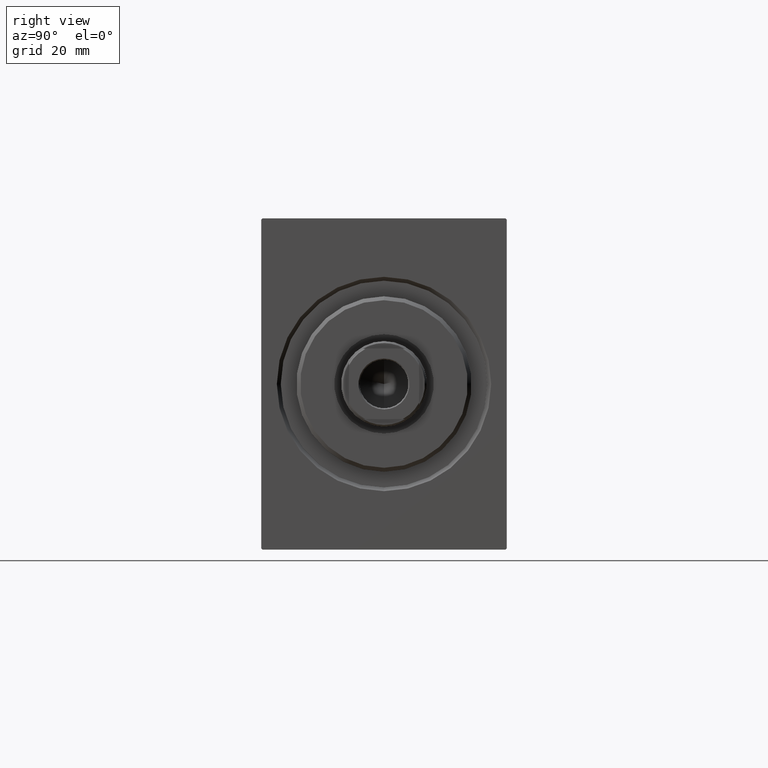
[diagram: clean part render]
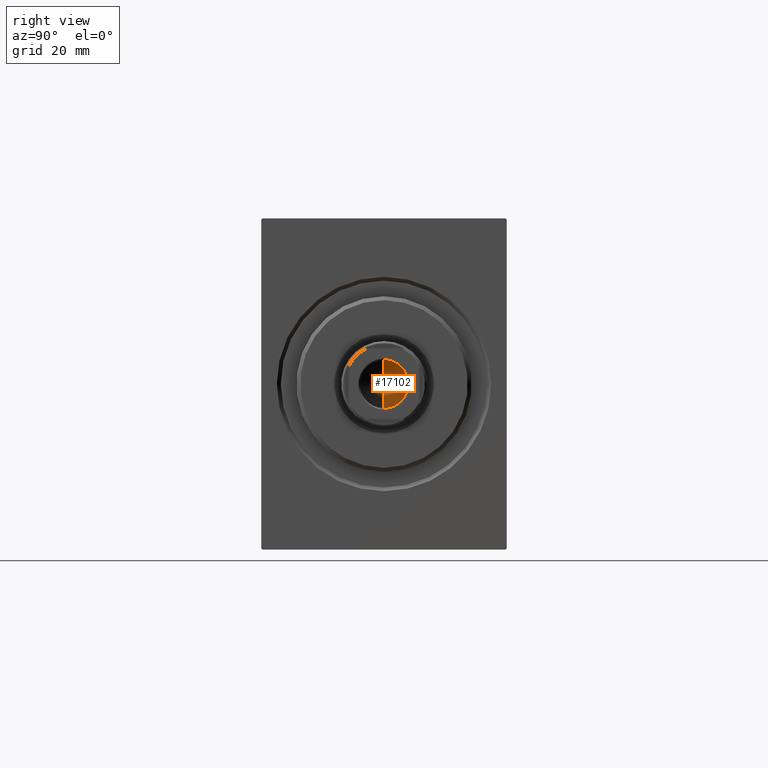
[diagram: same view with one face highlighted and labeled with its STEP entity id]
A machine part, right view. The second image highlights one B-rep face of the part: STEP entity #17102.
In plain terms, the highlighted conical surface has half-angle 59 deg.
Its self-contained STEP definition (entity closure, byte-faithful):
#949 = DIRECTION ( 'NONE',  ( 1.000000000000000000, 0.000000000000000000, 0.000000000000000000 ) ) ;
#1006 = EDGE_LOOP ( 'NONE', ( #6125, #40902, #13489 ) ) ;
#1551 = VERTEX_POINT ( 'NONE', #37731 ) ;
#4345 = AXIS2_PLACEMENT_3D ( 'NONE', #18221, #24932, #38171 ) ;
#4407 = VECTOR ( 'NONE', #16580, 1000.000000000000000 ) ;
#5572 = CARTESIAN_POINT ( 'NONE',  ( -5.058292539270947311E-15, 0.000000000000000000, 120.2446211310777500 ) ) ;
#6125 = ORIENTED_EDGE ( 'NONE', *, *, #20487, .F. ) ;
#6193 = CARTESIAN_POINT ( 'NONE',  ( 6.249999999999995559, 0.000000000000000000, 124.0000000000000142 ) ) ;
#7123 = CIRCLE ( 'NONE', #4345, 6.249999999999995559 ) ;
#7142 = DIRECTION ( 'NONE',  ( -0.8571673007021116675, 1.049727191138617833E-16, 0.5150380749100552658 ) ) ;
#13489 = ORIENTED_EDGE ( 'NONE', *, *, #37060, .T. ) ;
#13661 = CARTESIAN_POINT ( 'NONE',  ( -6.249999999999995559, 7.654042494670950704E-16, 124.0000000000000142 ) ) ;
#14081 = LINE ( 'NONE', #13661, #16935 ) ;
#16580 = DIRECTION ( 'NONE',  ( 0.8571673007021116675, 0.000000000000000000, 0.5150380749100552658 ) ) ;
#16935 = VECTOR ( 'NONE', #7142, 1000.000000000000000 ) ;
#17102 = ADVANCED_FACE ( 'NONE', ( #20673 ), #24988, .F. ) ;
#17423 = CARTESIAN_POINT ( 'NONE',  ( 0.000000000000000000, 0.000000000000000000, 124.0000000000000142 ) ) ;
#18221 = CARTESIAN_POINT ( 'NONE',  ( 0.000000000000000000, 0.000000000000000000, 124.0000000000000142 ) ) ;
#20487 = EDGE_CURVE ( 'NONE', #24756, #23593, #14081, .T. ) ;
#20673 = FACE_OUTER_BOUND ( 'NONE', #1006, .T. ) ;
#20881 = DIRECTION ( 'NONE',  ( -0.000000000000000000, -0.000000000000000000, 1.000000000000000000 ) ) ;
#23593 = VERTEX_POINT ( 'NONE', #38814 ) ;
#24756 = VERTEX_POINT ( 'NONE', #5572 ) ;
#24932 = DIRECTION ( 'NONE',  ( -0.000000000000000000, -0.000000000000000000, 1.000000000000000000 ) ) ;
#24988 = CONICAL_SURFACE ( 'NONE', #42301, 6.249999999999995559, 1.029744258676653201 ) ;
#29161 = LINE ( 'NONE', #6193, #4407 ) ;
#37060 = EDGE_CURVE ( 'NONE', #1551, #23593, #7123, .T. ) ;
#37731 = CARTESIAN_POINT ( 'NONE',  ( 6.249999999999995559, 0.000000000000000000, 124.0000000000000142 ) ) ;
#38171 = DIRECTION ( 'NONE',  ( 1.000000000000000000, 0.000000000000000000, 0.000000000000000000 ) ) ;
#38630 = EDGE_CURVE ( 'NONE', #24756, #1551, #29161, .T. ) ;
#38814 = CARTESIAN_POINT ( 'NONE',  ( -6.249999999999995559, 7.654042494670950704E-16, 124.0000000000000142 ) ) ;
#40902 = ORIENTED_EDGE ( 'NONE', *, *, #38630, .T. ) ;
#42301 = AXIS2_PLACEMENT_3D ( 'NONE', #17423, #20881, #949 ) ;